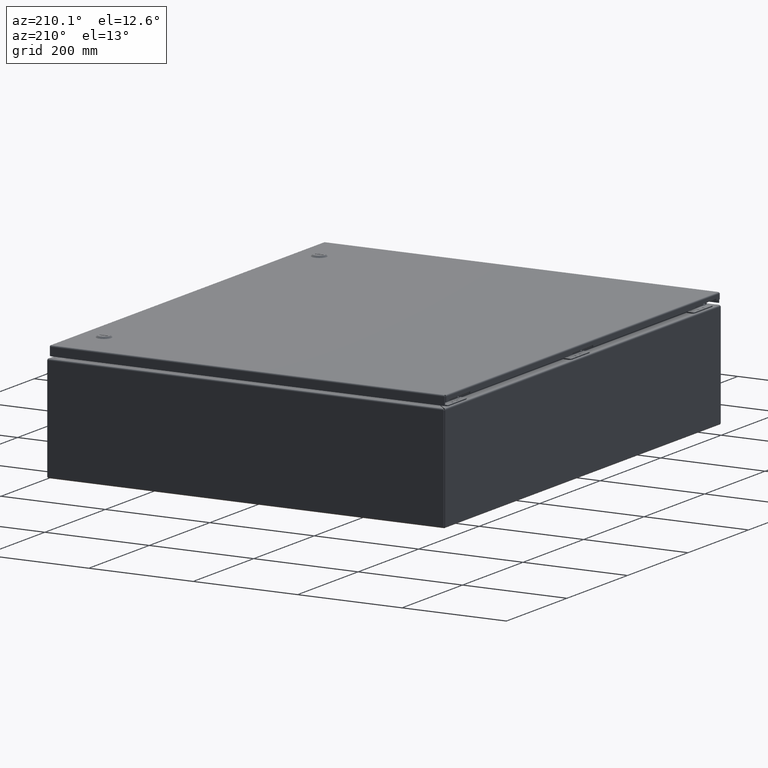
[diagram: clean part render]
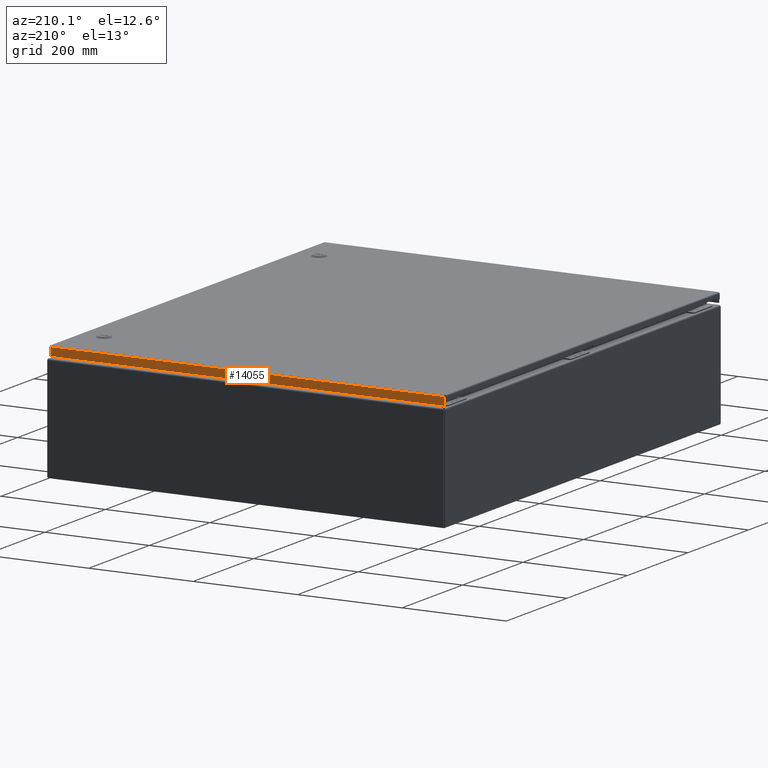
[diagram: same view with one face highlighted and labeled with its STEP entity id]
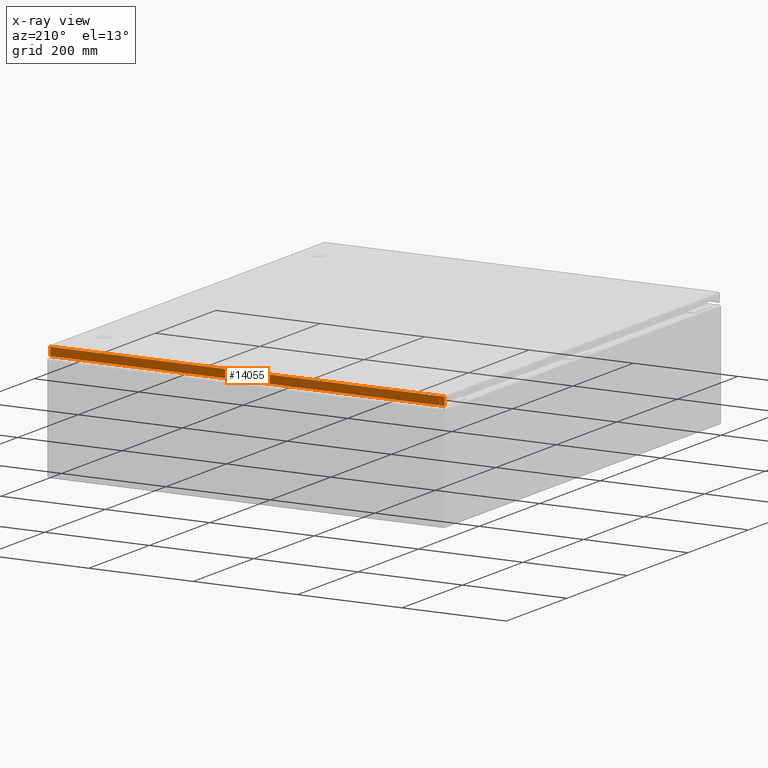
[diagram: x-ray of the same camera — body ghosted, the highlighted face saturated]
A machine part, auxiliary view. The second image highlights one B-rep face of the part: STEP entity #14055.
The next image is the same camera in x-ray: the body ghosted, the highlighted face saturated — about 0% of this face is hidden behind the body in this view.
In plain terms, the highlighted planar face has unit normal (-0, -1, 0).
Its self-contained STEP definition (entity closure, byte-faithful):
#1371=PLANE('',#14963);
#1897=FACE_OUTER_BOUND('',#2821,.T.);
#2821=EDGE_LOOP('',(#10354,#10355,#10356,#10357));
#4246=LINE('',#23120,#5327);
#4252=LINE('',#23147,#5333);
#4256=LINE('',#23207,#5337);
#4258=LINE('',#23210,#5339);
#5327=VECTOR('',#16942,29.7255857864376);
#5333=VECTOR('',#16952,0.62475);
#5337=VECTOR('',#16958,0.62475);
#5339=VECTOR('',#16962,29.7255857864376);
#6395=VERTEX_POINT('',#23118);
#6396=VERTEX_POINT('',#23119);
#6401=VERTEX_POINT('',#23146);
#6402=VERTEX_POINT('',#23206);
#7877=EDGE_CURVE('',#6395,#6396,#4246,.T.);
#7885=EDGE_CURVE('',#6401,#6396,#4252,.T.);
#7891=EDGE_CURVE('',#6395,#6402,#4256,.T.);
#7893=EDGE_CURVE('',#6402,#6401,#4258,.T.);
#10354=ORIENTED_EDGE('',*,*,#7877,.T.);
#10355=ORIENTED_EDGE('',*,*,#7885,.F.);
#10356=ORIENTED_EDGE('',*,*,#7893,.F.);
#10357=ORIENTED_EDGE('',*,*,#7891,.F.);
#14055=ADVANCED_FACE('',(#1897),#1371,.F.);
#14963=AXIS2_PLACEMENT_3D('',#23211,#16963,#16964);
#16942=DIRECTION('',(-1.,1.57282795801341E-18,8.09268993758749E-32));
#16952=DIRECTION('',(0.,5.14531160026499E-14,-1.));
#16958=DIRECTION('',(0.,-5.14531160026499E-14,1.));
#16962=DIRECTION('',(-1.,0.,0.));
#16963=DIRECTION('center_axis',(-1.57282795801341E-18,-1.,-5.31262846806774E-14));
#16964=DIRECTION('ref_axis',(1.,0.,0.));
#23118=CARTESIAN_POINT('',(29.8002928932188,35.75,0.105250000000001));
#23119=CARTESIAN_POINT('',(0.0747071067811752,35.75,0.105250000000001));
#23120=CARTESIAN_POINT('',(14.9375,35.75,0.105250000000007));
#23146=CARTESIAN_POINT('',(0.0747071067811759,35.75,0.730000000000002));
#23147=CARTESIAN_POINT('',(0.0747071067811759,35.75,0.105250000000001));
#23206=CARTESIAN_POINT('',(29.8002928932188,35.75,0.730000000000002));
#23207=CARTESIAN_POINT('',(29.8002928932188,35.75,0.105250000000001));
#23210=CARTESIAN_POINT('',(29.8002928932188,35.75,0.730000000000002));
#23211=CARTESIAN_POINT('Origin',(14.9375,35.75,0.384642108383576));